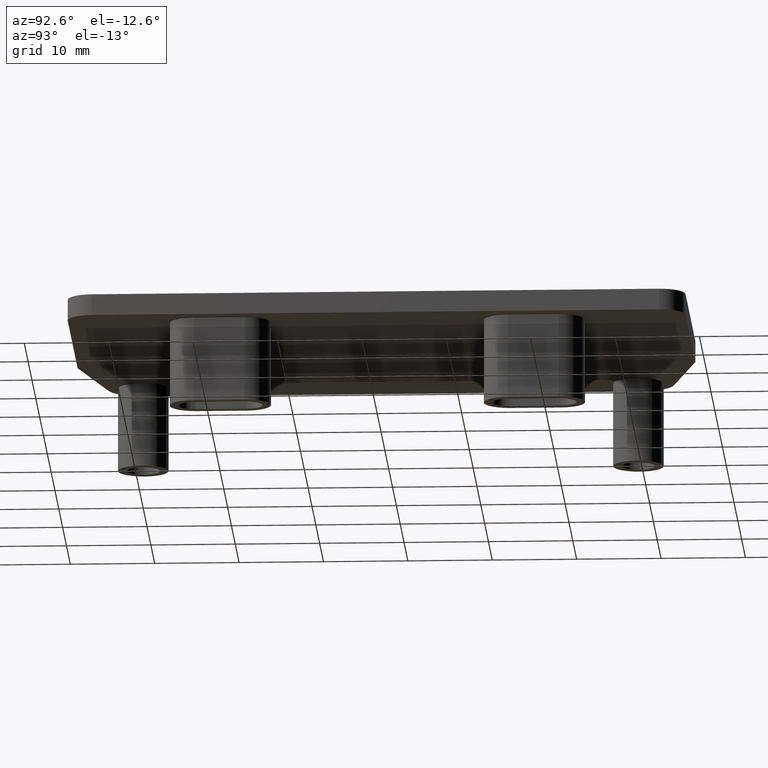
[diagram: clean part render]
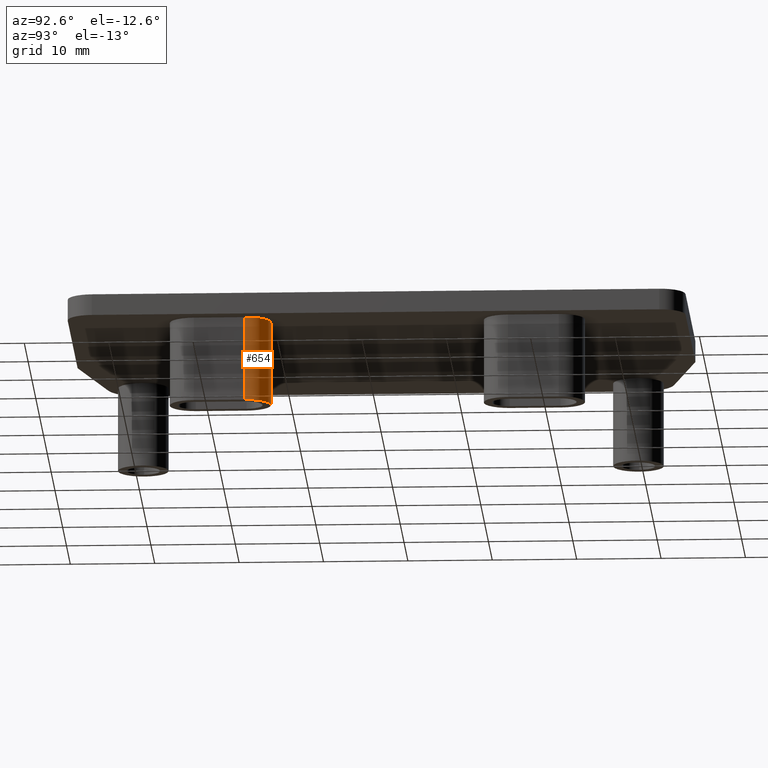
[diagram: same view with one face highlighted and labeled with its STEP entity id]
A machine part, auxiliary view. The second image highlights one B-rep face of the part: STEP entity #654.
In plain terms, the highlighted cylindrical surface (edge-blend (fillet) strip) has radius 3 mm, axis along (0, 0, -1).
Its self-contained STEP definition (entity closure, byte-faithful):
#34=CIRCLE('',#714,2.99999999999272);
#47=CIRCLE('',#742,2.99999999999272);
#63=CYLINDRICAL_SURFACE('',#741,2.99999999999272);
#96=FACE_OUTER_BOUND('',#141,.T.);
#141=EDGE_LOOP('',(#545,#546,#547,#548));
#201=LINE('',#1110,#259);
#202=LINE('',#1112,#260);
#259=VECTOR('',#908,10.);
#260=VECTOR('',#909,10.);
#301=VERTEX_POINT('',#1041);
#302=VERTEX_POINT('',#1043);
#323=VERTEX_POINT('',#1109);
#324=VERTEX_POINT('',#1111);
#371=EDGE_CURVE('',#302,#301,#34,.T.);
#401=EDGE_CURVE('',#302,#323,#201,.T.);
#402=EDGE_CURVE('',#301,#324,#202,.T.);
#403=EDGE_CURVE('',#323,#324,#47,.T.);
#545=ORIENTED_EDGE('',*,*,#401,.F.);
#546=ORIENTED_EDGE('',*,*,#371,.T.);
#547=ORIENTED_EDGE('',*,*,#402,.T.);
#548=ORIENTED_EDGE('',*,*,#403,.F.);
#654=ADVANCED_FACE('',(#96),#63,.T.);
#714=AXIS2_PLACEMENT_3D('',#1044,#835,#836);
#741=AXIS2_PLACEMENT_3D('',#1108,#906,#907);
#742=AXIS2_PLACEMENT_3D('',#1113,#910,#911);
#835=DIRECTION('center_axis',(0.,0.,-1.));
#836=DIRECTION('ref_axis',(1.,0.,0.));
#906=DIRECTION('center_axis',(0.,0.,-1.));
#907=DIRECTION('ref_axis',(-1.,0.,0.));
#908=DIRECTION('',(0.,0.,-1.));
#909=DIRECTION('',(0.,0.,-1.));
#910=DIRECTION('center_axis',(0.,0.,-1.));
#911=DIRECTION('ref_axis',(1.,0.,0.));
#1041=CARTESIAN_POINT('',(42.4999999998363,-15.6059999999379,0.));
#1043=CARTESIAN_POINT('',(36.4999999998508,-15.6059999999379,0.));
#1044=CARTESIAN_POINT('Origin',(39.4999999998436,-15.6059999999379,0.));
#1108=CARTESIAN_POINT('Origin',(39.4999999998436,-15.6059999999379,0.));
#1109=CARTESIAN_POINT('',(36.4999999998508,-15.6059999999379,-10.));
#1110=CARTESIAN_POINT('',(36.4999999998508,-15.6059999999379,0.));
#1111=CARTESIAN_POINT('',(42.4999999998363,-15.6059999999379,-10.));
#1112=CARTESIAN_POINT('',(42.4999999998363,-15.6059999999379,0.));
#1113=CARTESIAN_POINT('Origin',(39.4999999998436,-15.6059999999379,-10.));